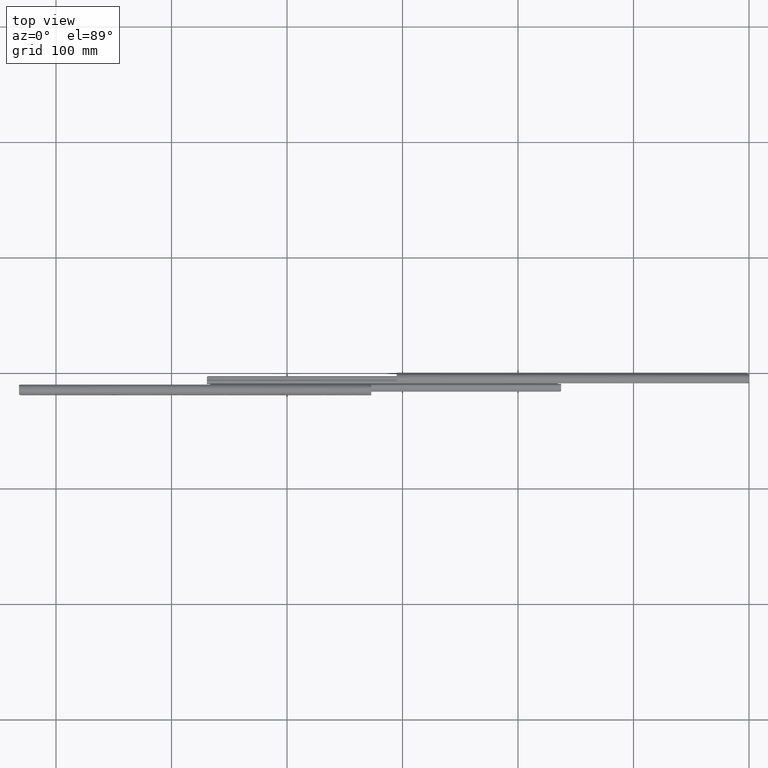
[diagram: clean part render]
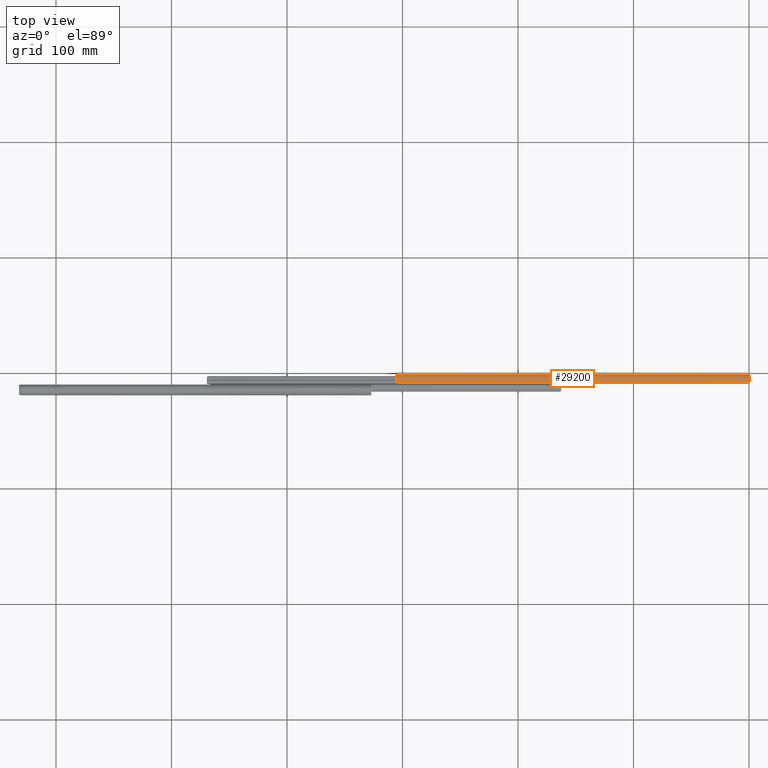
[diagram: same view with one face highlighted and labeled with its STEP entity id]
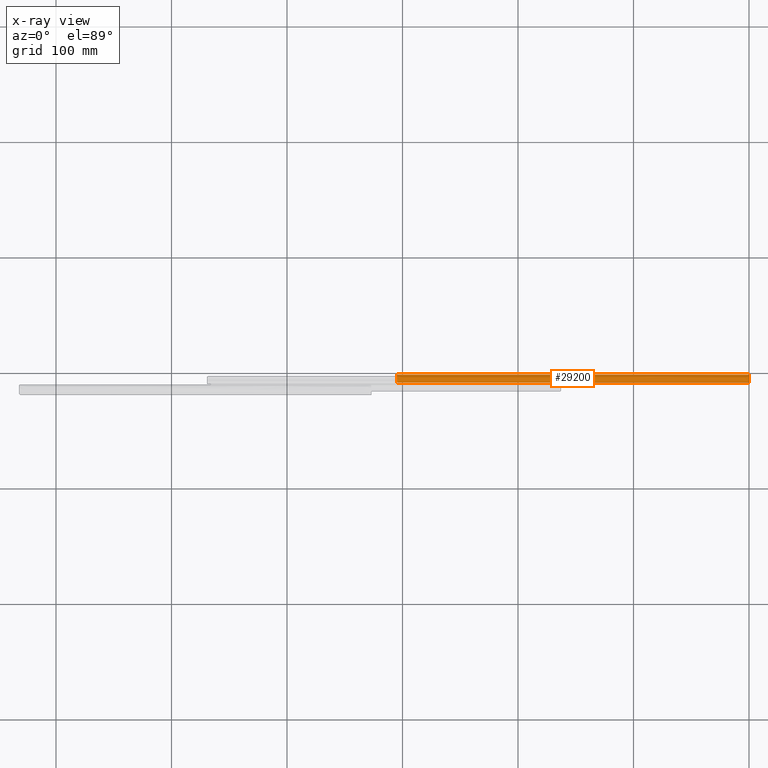
[diagram: x-ray of the same camera — body ghosted, the highlighted face saturated]
A machine part, top view. The second image highlights one B-rep face of the part: STEP entity #29200.
The next image is the same camera in x-ray: the body ghosted, the highlighted face saturated — about 0% of this face is hidden behind the body in this view.
In plain terms, the highlighted face is a freeform B-spline surface patch.
Its self-contained STEP definition (entity closure, byte-faithful):
#27714=CARTESIAN_POINT('',(-1.600000000000045,-8.699999993713950,15.138563460618050));
#27715=VERTEX_POINT('',#27714);
#27716=CARTESIAN_POINT('',(0.0,-7.797361481443610,16.501614328666850));
#27717=VERTEX_POINT('',#27716);
#27718=CARTESIAN_POINT('',(-1.600000000000045,-8.699999993713950,15.138563460618050));
#27719=CARTESIAN_POINT('',(-1.492489349244849,-8.700000152610311,15.138563060623900));
#27720=CARTESIAN_POINT('',(-1.386802531762447,-8.696078362615733,15.148546636778290));
#27721=CARTESIAN_POINT('',(-1.230898220800232,-8.684205451456776,15.177753711239120));
#27722=CARTESIAN_POINT('',(-1.179371119994508,-8.679235338718902,15.189876977429890));
#27723=CARTESIAN_POINT('',(-1.077220881462930,-8.667076818440254,15.218958878442219));
#27724=CARTESIAN_POINT('',(-1.026542418936705,-8.659862174547719,15.235973879352480));
#27725=CARTESIAN_POINT('',(-0.879285922301148,-8.635068562867181,15.293049588916190));
#27726=CARTESIAN_POINT('',(-0.786269952394075,-8.614272213401863,15.339377905997299));
#27727=CARTESIAN_POINT('',(-0.654470988538445,-8.575229616846853,15.420602495762900));
#27728=CARTESIAN_POINT('',(-0.611609000574161,-8.560804374952021,15.449821723506309));
#27729=CARTESIAN_POINT('',(-0.529773960030505,-8.529370674511993,15.511326164734029));
#27730=CARTESIAN_POINT('',(-0.490915070613638,-8.512430805407981,15.543485657188331));
#27731=CARTESIAN_POINT('',(-0.380335820580862,-8.457633058469607,15.643828412097751));
#27732=CARTESIAN_POINT('',(-0.314560337238547,-8.415838682783805,15.715845951868101));
#27733=CARTESIAN_POINT('',(-0.228090494015619,-8.343364282175100,15.830767086955690));
#27734=CARTESIAN_POINT('',(-0.201657289178922,-8.317829631880249,15.869798213791150));
#27735=CARTESIAN_POINT('',(-0.153883455423957,-8.264384929967143,15.948310864425260));
#27736=CARTESIAN_POINT('',(-0.111017973559375,-8.208411749154234,16.027518410731901));
#27737=CARTESIAN_POINT('',(-0.077677860722000,-8.147098624700668,16.107761205598312));
#27738=CARTESIAN_POINT('',(-0.049067674592589,-8.082936142322289,16.188375003247501));
#27739=CARTESIAN_POINT('',(-0.037150045899664,-8.049386098923328,16.228898812355119));
#27740=CARTESIAN_POINT('',(-0.009006493333667,-7.946348841798668,16.348385031450810));
#27741=CARTESIAN_POINT('',(-9.106075E-016,-7.873837214073540,16.426097027481848));
#27742=CARTESIAN_POINT('',(-9.100724E-017,-7.797361481443610,16.501614328666850));
#27743=B_SPLINE_CURVE_WITH_KNOTS('',3,(#27718,#27719,#27720,#27721,#27722,#27723,#27724,#27725,#27726,#27727,#27728,#27729,#27730,#27731,#27732,#27733,#27734,#27735,#27736,#27737,#27738,#27739,#27740,#27741,#27742),.UNSPECIFIED.,.F.,.U.,(4,2,2,2,2,2,2,2,2,1,2,2,4),(0.0,0.124999999999999,0.187499999999999,0.249999999999999,0.375000000000000,0.437500000000001,0.500000000000002,0.625000000000000,0.687500000000000,0.749999999999999,0.812499999999999,0.874999999999998,1.0),.UNSPECIFIED.);
#27744=EDGE_CURVE('',#27715,#27717,#27743,.T.);
#27993=CARTESIAN_POINT('',(-305.0,-7.797361481443610,16.501614328666850));
#27994=VERTEX_POINT('',#27993);
#27995=CARTESIAN_POINT('',(-303.399999999999980,-8.699999993713950,15.138563460618050));
#27996=VERTEX_POINT('',#27995);
#27997=CARTESIAN_POINT('',(-305.0,-7.797361481443610,16.501614328666850));
#27998=CARTESIAN_POINT('',(-305.000000000000110,-7.873805619574997,16.426128226022630));
#27999=CARTESIAN_POINT('',(-304.990997168026010,-7.946032535434086,16.348703280249389));
#28000=CARTESIAN_POINT('',(-304.963169052170090,-8.048366689732680,16.230104820762030));
#28001=CARTESIAN_POINT('',(-304.951493124806010,-8.081474866310176,16.190162416846821));
#28002=CARTESIAN_POINT('',(-304.923026404535110,-8.145713980379023,16.109547304402511));
#28003=CARTESIAN_POINT('',(-304.906181416015270,-8.176853511728078,16.068838571262919));
#28004=CARTESIAN_POINT('',(-304.848901248948210,-8.265269606879231,15.948717816974790));
#28005=CARTESIAN_POINT('',(-304.801481485602780,-8.318358795540080,15.870322951846390));
#28006=CARTESIAN_POINT('',(-304.715997534006080,-8.390332612937790,15.756336066509281));
#28007=CARTESIAN_POINT('',(-304.684895291087800,-8.413163632537357,15.718734348046500));
#28008=CARTESIAN_POINT('',(-304.618681484456320,-8.455725418992326,15.646143142053839));
#28009=CARTESIAN_POINT('',(-304.583679275785020,-8.475428078466994,15.611224716890280));
#28010=CARTESIAN_POINT('',(-304.473109634993020,-8.530331836524148,15.510742359905469));
#28011=CARTESIAN_POINT('',(-304.391907258182580,-8.561401111207303,15.449330084750910));
#28012=CARTESIAN_POINT('',(-304.214682097002990,-8.614078434105176,15.339821627805360));
#28013=CARTESIAN_POINT('',(-304.121416308088780,-8.634910327298560,15.293401327635170));
#28014=CARTESIAN_POINT('',(-303.974798546655510,-8.659656052131167,15.236454534644510));
#28015=CARTESIAN_POINT('',(-303.924797647834280,-8.666806417014067,15.219599354771770));
#28016=CARTESIAN_POINT('',(-303.822479922021900,-8.679044042591158,15.190340599907250));
#28017=CARTESIAN_POINT('',(-303.770336436145610,-8.684098708528635,15.178014953838501));
#28018=CARTESIAN_POINT('',(-303.613514962655420,-8.696079282784982,15.148547022616670));
#28019=CARTESIAN_POINT('',(-303.507505407054280,-8.700000152610340,15.138563060623950));
#28020=CARTESIAN_POINT('',(-303.399999999999980,-8.699999993713950,15.138563460618050));
#28021=B_SPLINE_CURVE_WITH_KNOTS('',3,(#27997,#27998,#27999,#28000,#28001,#28002,#28003,#28004,#28005,#28006,#28007,#28008,#28009,#28010,#28011,#28012,#28013,#28014,#28015,#28016,#28017,#28018,#28019,#28020),.UNSPECIFIED.,.F.,.U.,(4,2,2,2,2,2,2,2,2,2,2,4),(0.0,0.124999999999997,0.187499999999994,0.249999999999991,0.375000000000012,0.437500000000023,0.500000000000034,0.625000000000056,0.750000000000077,0.812500000000058,0.875000000000039,1.0),.UNSPECIFIED.);
#28022=EDGE_CURVE('',#27994,#27996,#28021,.T.);
#28904=CARTESIAN_POINT('',(-0.002126657347072,-1.820942381806470,16.065402712160751));
#28905=VERTEX_POINT('',#28904);
#28919=CARTESIAN_POINT('',(0.0,-1.884824599746815,16.147869559069100));
#28920=VERTEX_POINT('',#28919);
#28921=CARTESIAN_POINT('',(-0.002126657347072,-1.820942381806470,16.065402712160751));
#28922=CARTESIAN_POINT('',(-0.000694151317605,-1.841867413671399,16.093158874588291));
#28923=CARTESIAN_POINT('',(9.335865E-016,-1.863161367783382,16.120648295352520));
#28924=CARTESIAN_POINT('',(0.0,-1.884824599746815,16.147869559069100));
#28925=QUASI_UNIFORM_CURVE('',3,(#28921,#28922,#28923,#28924),.UNSPECIFIED.,.F.,.U.);
#28926=EDGE_CURVE('',#28905,#28920,#28925,.T.);
#29139=CARTESIAN_POINT('',(-312.625000000000110,-8.753174195008251,14.996919802555979));
#29140=CARTESIAN_POINT('',(7.815625000000011,-8.753174195008251,14.996919802555979));
#29141=CARTESIAN_POINT('',(-312.625000000000000,-6.030022546558101,22.692067272698377));
#29142=CARTESIAN_POINT('',(7.815625000000012,-6.030022546558101,22.692067272698377));
#29143=CARTESIAN_POINT('',(-312.625000000000110,-1.642703150916649,15.808588645701420));
#29144=CARTESIAN_POINT('',(7.815625000000011,-1.642703150916649,15.808588645701420));
#29152=(BOUNDED_SURFACE()B_SPLINE_SURFACE(1,2,((#29139,#29141,#29143),(#29140,#29142,#29144)),.UNSPECIFIED.,.F.,.F.,.U.)B_SPLINE_SURFACE_WITH_KNOTS((2,2),(3,3),(0.0,320.440625000000130),(0.0,9.951044429156033),.UNSPECIFIED.)GEOMETRIC_REPRESENTATION_ITEM()RATIONAL_B_SPLINE_SURFACE(((1.0,0.438371146789078,1.0),(1.0,0.438371146789078,1.0)))REPRESENTATION_ITEM('')SURFACE());
#29153=CARTESIAN_POINT('',(-305.0,-1.820941999999945,16.065403000000000));
#29154=VERTEX_POINT('',#29153);
#29155=CARTESIAN_POINT('',(-305.0,-1.820941999999945,16.065403000000000));
#29156=CARTESIAN_POINT('',(-305.0,-2.908446646197579,17.507930742604263));
#29157=CARTESIAN_POINT('',(-305.0,-4.710184319271288,17.639437400652930));
#29158=CARTESIAN_POINT('',(-305.0,-6.511921992344997,17.770944058701602));
#29159=CARTESIAN_POINT('',(-305.0,-7.797361481443666,16.501614328666911));
#29167=(BOUNDED_CURVE()B_SPLINE_CURVE(2,(#29155,#29156,#29157,#29158,#29159),.UNSPECIFIED.,.F.,.U.)B_SPLINE_CURVE_WITH_KNOTS((3,2,3),(0.0,0.500000000000000,1.0),.UNSPECIFIED.)CURVE()GEOMETRIC_REPRESENTATION_ITEM()RATIONAL_B_SPLINE_CURVE((1.0,0.910635857273627,1.0,0.910635857273627,1.0))REPRESENTATION_ITEM(''));
#29168=EDGE_CURVE('',#29154,#27994,#29167,.T.);
#29169=ORIENTED_EDGE('',*,*,#29168,.T.);
#29170=ORIENTED_EDGE('',*,*,#28022,.T.);
#29171=CARTESIAN_POINT('',(-303.399999999999980,-8.699999993713950,15.138563460618050));
#29172=CARTESIAN_POINT('',(-1.600000000000045,-8.699999993713950,15.138563460618050));
#29173=QUASI_UNIFORM_CURVE('',1,(#29171,#29172),.UNSPECIFIED.,.F.,.U.);
#29174=EDGE_CURVE('',#27996,#27715,#29173,.T.);
#29175=ORIENTED_EDGE('',*,*,#29174,.T.);
#29176=ORIENTED_EDGE('',*,*,#27744,.T.);
#29177=CARTESIAN_POINT('',(0.0,-1.884824599746815,16.147869559069100));
#29178=CARTESIAN_POINT('',(0.0,-2.990223276974896,17.536875084912417));
#29179=CARTESIAN_POINT('',(0.0,-4.762228550385515,17.642893467496918));
#29180=CARTESIAN_POINT('',(0.0,-6.534233823796138,17.748911850081409));
#29181=CARTESIAN_POINT('',(0.0,-7.797361481443610,16.501614328666850));
#29189=(BOUNDED_CURVE()B_SPLINE_CURVE(2,(#29177,#29178,#29179,#29180,#29181),.UNSPECIFIED.,.F.,.U.)B_SPLINE_CURVE_WITH_KNOTS((3,2,3),(0.0,0.500000000000000,1.0),.UNSPECIFIED.)CURVE()GEOMETRIC_REPRESENTATION_ITEM()RATIONAL_B_SPLINE_CURVE((1.0,0.913323076196492,1.0,0.913323076196492,1.0))REPRESENTATION_ITEM(''));
#29190=EDGE_CURVE('',#28920,#27717,#29189,.T.);
#29191=ORIENTED_EDGE('',*,*,#29190,.F.);
#29192=ORIENTED_EDGE('',*,*,#28926,.F.);
#29193=CARTESIAN_POINT('',(-305.0,-1.820941999999945,16.065403000000000));
#29194=CARTESIAN_POINT('',(-0.002126657347072,-1.820942381806470,16.065402712160751));
#29195=QUASI_UNIFORM_CURVE('',1,(#29193,#29194),.UNSPECIFIED.,.F.,.U.);
#29196=EDGE_CURVE('',#29154,#28905,#29195,.T.);
#29197=ORIENTED_EDGE('',*,*,#29196,.F.);
#29198=EDGE_LOOP('',(#29169,#29170,#29175,#29176,#29191,#29192,#29197));
#29199=FACE_OUTER_BOUND('',#29198,.T.);
#29200=ADVANCED_FACE('',(#29199),#29152,.T.);